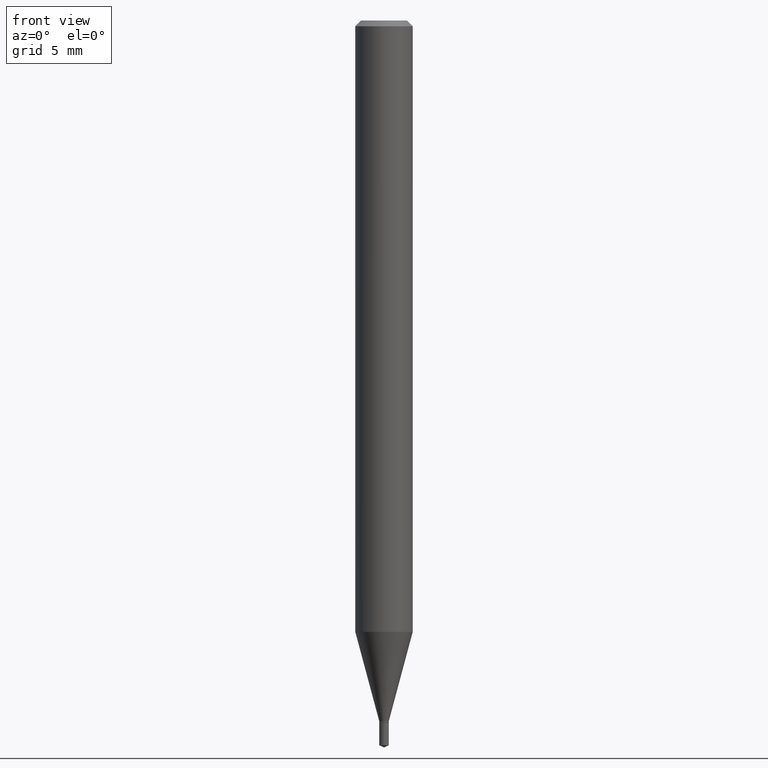
[diagram: clean part render]
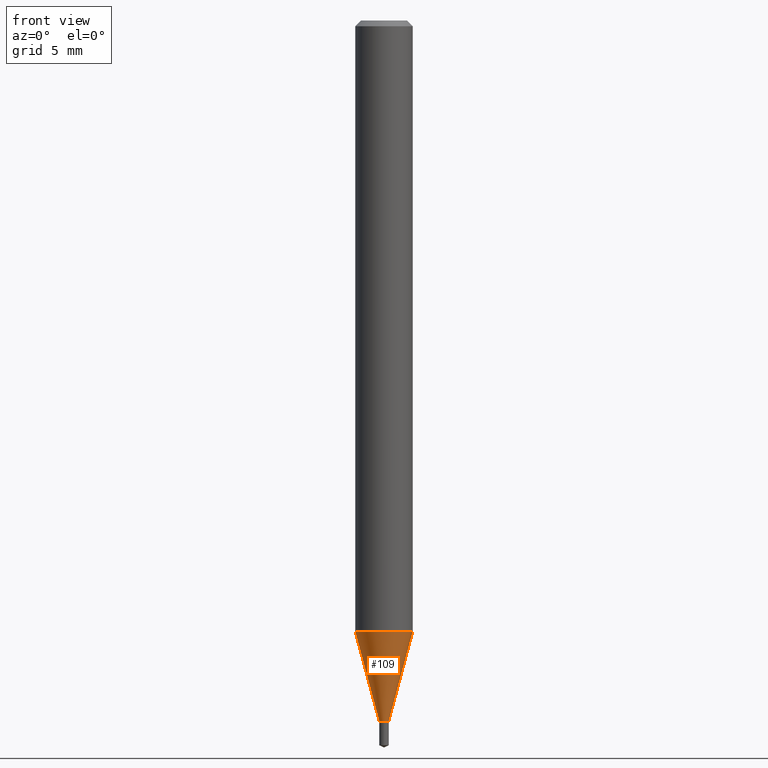
[diagram: same view with one face highlighted and labeled with its STEP entity id]
A machine part, front view. The second image highlights one B-rep face of the part: STEP entity #109.
In plain terms, the highlighted conical surface has half-angle 15 deg.
Its self-contained STEP definition (entity closure, byte-faithful):
#8 = DIRECTION ( 'NONE',  ( 1.000000000000000000, -6.982962677686229634E-15, 0.000000000000000000 ) ) ;
#34 = CARTESIAN_POINT ( 'NONE',  ( 3.526121471638348605E-29, -5.034366942477931573E-15, -1.441899999999999959 ) ) ;
#53 = CARTESIAN_POINT ( 'NONE',  ( 3.526121471638348605E-29, -5.034366942477931573E-15, -1.441899999999999959 ) ) ;
#55 = CONICAL_SURFACE ( 'NONE', #172, 0.009849999999999999381, 0.2617993877991498519 ) ;
#59 = ORIENTED_EDGE ( 'NONE', *, *, #93, .T. ) ;
#82 = DIRECTION ( 'NONE',  ( 1.000000000000000000, -6.982962677686229634E-15, 0.000000000000000000 ) ) ;
#93 = EDGE_CURVE ( 'NONE', #313, #347, #287, .T. ) ;
#109 = ADVANCED_FACE ( 'NONE', ( #359 ), #55, .T. ) ;
#146 = DIRECTION ( 'NONE',  ( -0.2588190451025211281, 5.211531920934547886E-15, 0.9659258262890679791 ) ) ;
#153 = ORIENTED_EDGE ( 'NONE', *, *, #463, .T. ) ;
#165 = VECTOR ( 'NONE', #146, 39.37007874015748854 ) ;
#172 = AXIS2_PLACEMENT_3D ( 'NONE', #53, #422, #8 ) ;
#194 = DIRECTION ( 'NONE',  ( -2.445468806185136597E-29, 3.491481338843145583E-15, 1.000000000000000000 ) ) ;
#231 = CARTESIAN_POINT ( 'NONE',  ( -0.05905000000000017180, -3.973696478099721352E-15, -1.258283100267610921 ) ) ;
#236 = EDGE_LOOP ( 'NONE', ( #467, #153, #59, #404 ) ) ;
#275 = EDGE_CURVE ( 'NONE', #448, #307, #305, .T. ) ;
#276 = CARTESIAN_POINT ( 'NONE',  ( -0.009849999999999999381, -4.968742834679114889E-15, -1.441899999999999959 ) ) ;
#281 = CIRCLE ( 'NONE', #425, 0.05905000000000015792 ) ;
#287 = LINE ( 'NONE', #419, #399 ) ;
#292 = DIRECTION ( 'NONE',  ( 0.2588190451025211281, 1.565188264969622954E-15, 0.9659258262890679791 ) ) ;
#305 = LINE ( 'NONE', #335, #165 ) ;
#307 = VERTEX_POINT ( 'NONE', #231 ) ;
#313 = VERTEX_POINT ( 'NONE', #314 ) ;
#314 = CARTESIAN_POINT ( 'NONE',  ( 0.009849999999999999381, -5.103149124853140392E-15, -1.441899999999999959 ) ) ;
#335 = CARTESIAN_POINT ( 'NONE',  ( -0.009849999999999999381, -4.964378483005560736E-15, -1.441899999999999959 ) ) ;
#339 = CARTESIAN_POINT ( 'NONE',  ( 3.077092071054366958E-29, -4.393271963566061633E-15, -1.258283100267610921 ) ) ;
#341 = CIRCLE ( 'NONE', #389, 0.009849999999999999381 ) ;
#346 = DIRECTION ( 'NONE',  ( -2.445468806185136597E-29, 3.491481338843145583E-15, 1.000000000000000000 ) ) ;
#347 = VERTEX_POINT ( 'NONE', #370 ) ;
#358 = EDGE_CURVE ( 'NONE', #307, #347, #281, .T. ) ;
#359 = FACE_OUTER_BOUND ( 'NONE', #236, .T. ) ;
#370 = CARTESIAN_POINT ( 'NONE',  ( 0.05905000000000017180, -4.805615909683436554E-15, -1.258283100267610921 ) ) ;
#389 = AXIS2_PLACEMENT_3D ( 'NONE', #34, #194, #82 ) ;
#399 = VECTOR ( 'NONE', #292, 39.37007874015748854 ) ;
#404 = ORIENTED_EDGE ( 'NONE', *, *, #358, .F. ) ;
#419 = CARTESIAN_POINT ( 'NONE',  ( 0.009849999999999999381, -5.103149124853140392E-15, -1.441899999999999959 ) ) ;
#422 = DIRECTION ( 'NONE',  ( -2.445468806185136597E-29, 3.491481338843145583E-15, 1.000000000000000000 ) ) ;
#425 = AXIS2_PLACEMENT_3D ( 'NONE', #339, #346, #489 ) ;
#448 = VERTEX_POINT ( 'NONE', #276 ) ;
#463 = EDGE_CURVE ( 'NONE', #448, #313, #341, .T. ) ;
#467 = ORIENTED_EDGE ( 'NONE', *, *, #275, .F. ) ;
#489 = DIRECTION ( 'NONE',  ( 1.000000000000000000, -6.982962677686270655E-15, 0.000000000000000000 ) ) ;